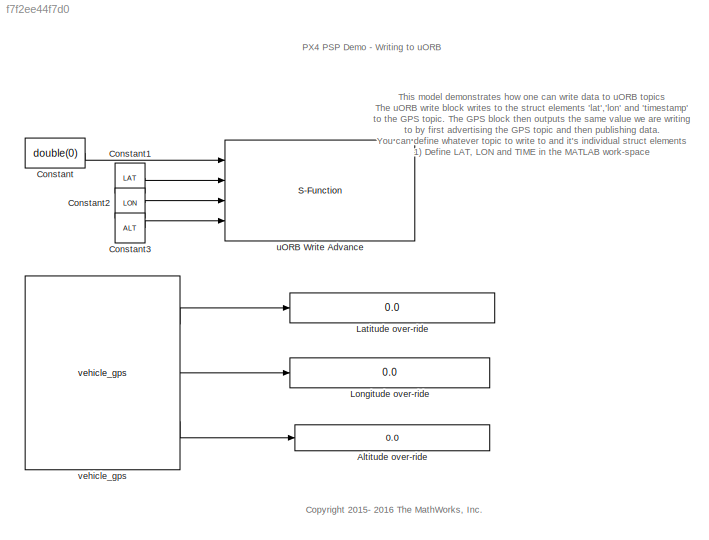
MODEL slx_f7f2ee44f7d0
KIND model
CONFIG AbsTol = auto
CONFIG EnableMultiTasking = on
CONFIG FixedStep = auto
CONFIG InitFcn = LAT = int32(10);\nLON = int32(12);\nALT = int32(21);
CONFIG MaxStep = auto
CONFIG MinStep = auto
CONFIG RelTol = 1e-3
CONFIG SampleTimeConstraint = Unconstrained
CONFIG Solver = FixedStepDiscrete
CONFIG SolverName = FixedStepDiscrete
CONFIG StartTime = 0.0
CONFIG StopTime = inf
BLOCK [Display] Altitude over-ride
  Decimation = 1
  Ports = [1]
BLOCK [Constant] Constant
  Value = double(0)
BLOCK [Constant] Constant1
  OutDataTypeStr = int32
  SampleTime = 0.1
  Value = LAT
BLOCK [Constant] Constant2
  OutDataTypeStr = int32
  SampleTime = 0.1
  Value = LON
BLOCK [Constant] Constant3
  OutDataTypeStr = int32
  SampleTime = 0.1
  Value = ALT
BLOCK [Display] Latitude over-ride
  Decimation = 1
  Ports = [1]
BLOCK [Display] Longitude over-ride
  Decimation = 1
  Ports = [1]
BLOCK [S-Function] uORB Write Advance
  EnableBusSupport = off
  FunctionName = sfun_px4_uorb_write
  OpenFcn = codertarget.pixhawk.blocks.Block_Callbacks.uORB.ParamUpdateMaskDialog_uORB_Write(gcbh);
  Parameters = Ts, uORB_Topic_str, int32(uORB_Struct_DT), int32(BlockInputCount),char(uORB_StructParams),int32(uORB_PortSizes),uint32(uORB_AdvtQueue),uint32(MsgSizeOf)
  Ports = [4]
  SFcnIsStateOwnerBlock = on
  SFcnStateName = uorb_msg
  SFunctionDeploymentMode = off
  UserDataPersistent = on
BLOCK [Reference] vehicle_gps  REF=pixhawk_slib_sensors_actuators/vehicle_gps
  Ports = [0, 3]
  SourceBlock = pixhawk_slib_sensors_actuators/vehicle_gps
  SourceProductName = Pixhawk Target Blocks
  SourceType = PX4_Vehicle_GPS
ANNOTATION (root): PX4 PSP Demo - Writing to uORB
ANNOTATION (root): This model demonstrates how one can write data to uORB topics The uORB write block writes to the struct elements 'lat','lon' and 'timestamp' to the GPS topic. The GPS block then outputs the same value we are writing to by first advertising the GPS topic and then publishing data. You can define whatever topic to write to and it's individual struct elements 1) Define LAT, LON and TIME in the MATLAB ...<+367ch>
ANNOTATION (root): <copyright redacted>
LINE Constant1:1 -> uORB Write Advance:2
LINE Constant2:1 -> uORB Write Advance:3
LINE Constant3:1 -> uORB Write Advance:4
LINE Constant:1 -> uORB Write Advance:1
LINE vehicle_gps:1 -> Latitude over-ride:1
LINE vehicle_gps:2 -> Longitude over-ride:1
LINE vehicle_gps:3 -> Altitude over-ride:1
